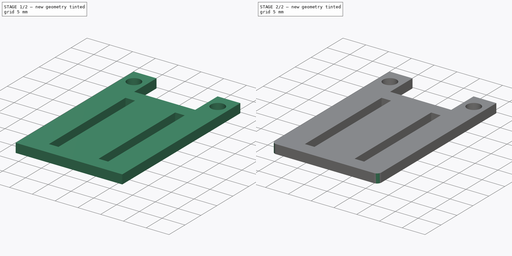
[diagram: build sequence overview — one tinted view per stage of 2, left to right]
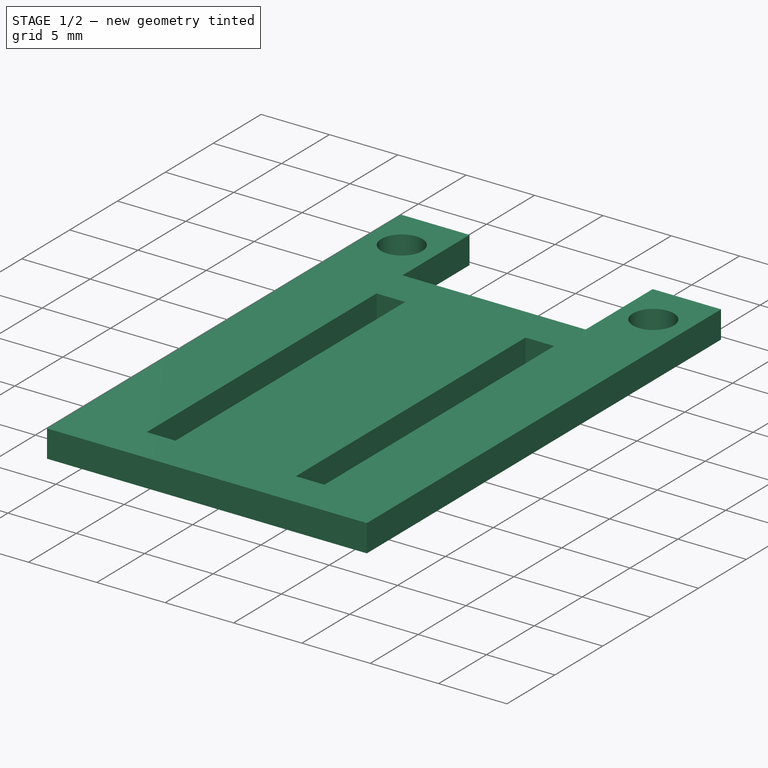
[diagram: stage 1 of 2 — iso view after this stage's code; geometry added in this stage tinted green]
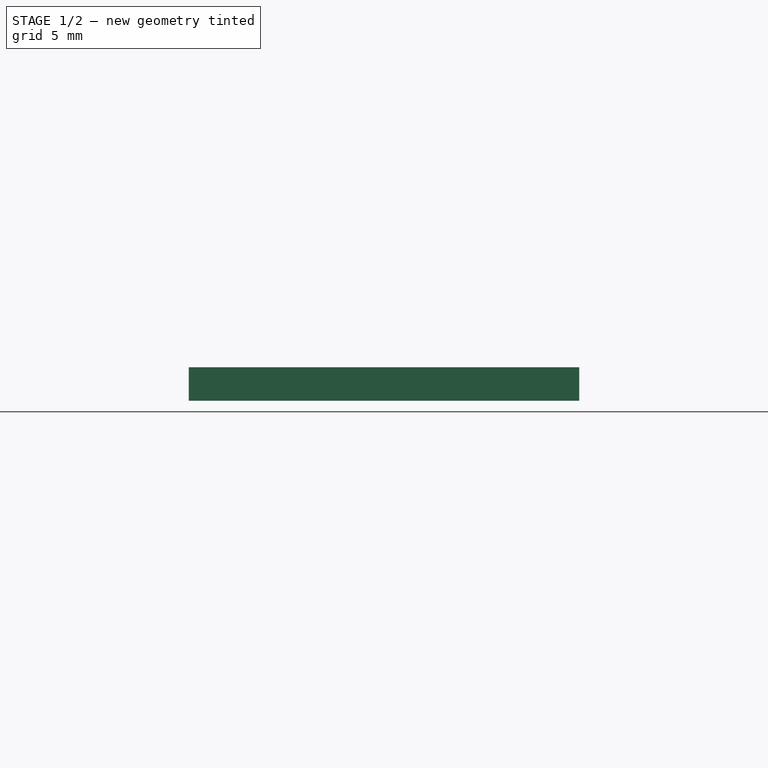
[diagram: stage 1 of 2 — front view after this stage's code; geometry added in this stage tinted green]
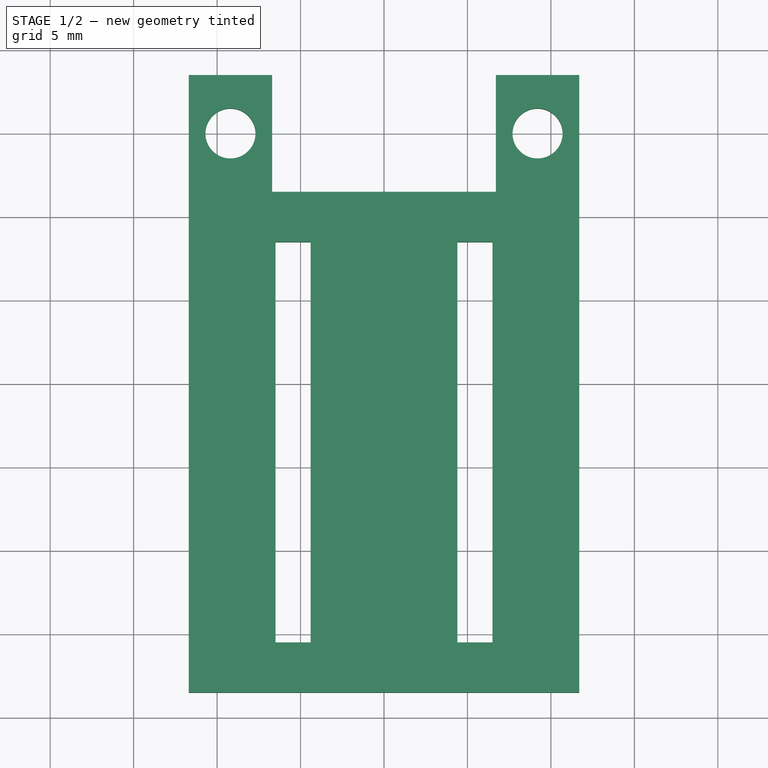
[diagram: stage 1 of 2 — top view after this stage's code; geometry added in this stage tinted green]
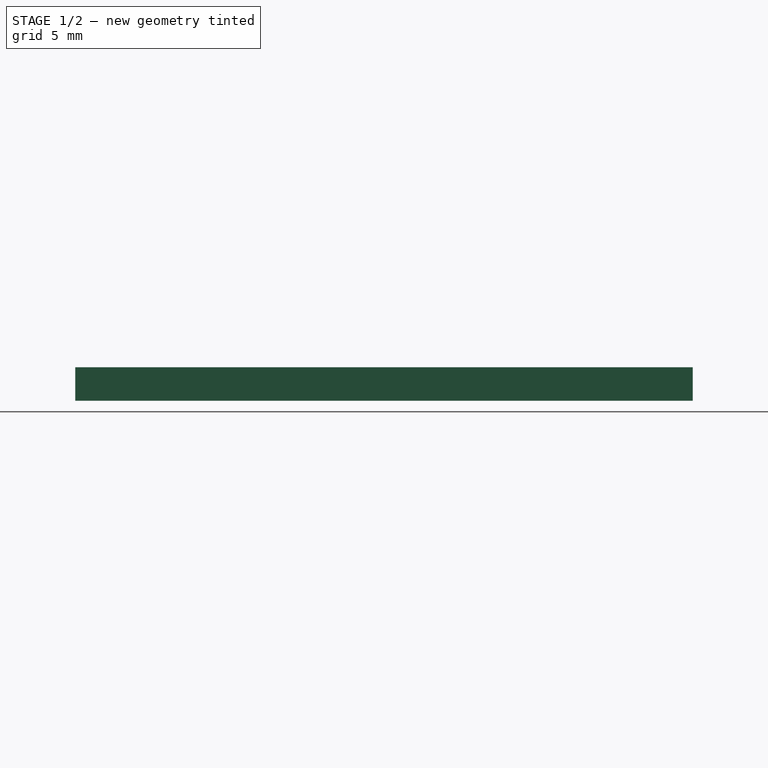
[diagram: stage 1 of 2 — right view after this stage's code; geometry added in this stage tinted green]
FCSTD DOCUMENT  (FreeCAD 0.19R24291 (Git))
Label: holder_optostop
License: All rights reserved
LicenseURL: http://en.wikipedia.org/wiki/All_rights_reserved
objects: Sketcher::SketchObject×1, PartDesign::Pad×1, PartDesign::Fillet×1, PartDesign::Body×1
note: 6 computed .brp shape members not serialized (recipe doc carries the construction recipe); baked Part::Feature solids carry a one-line shape summary decoded from their .brp

FEATURE [Sketcher::SketchObject] Sketch
  FullyConstrained = false
  MapMode = 5
  Support = -> [XY_Plane]
  sketch-geometry (28):
    g0: Circle CenterX=-9.2 CenterY=0 CenterZ=0 NormalX=0 NormalY=0 NormalZ=1 AngleXU=0 Radius=1.5
    g1: Circle CenterX=9.2 CenterY=0 CenterZ=0 NormalX=0 NormalY=0 NormalZ=1 AngleXU=0 Radius=1.5
    g2: LineSegment StartX=-6.5 StartY=-6.5 StartZ=0 EndX=-4.4 EndY=-6.5 EndZ=0
    g3: LineSegment StartX=-4.4 StartY=-6.5 StartZ=0 EndX=-4.4 EndY=-30.5 EndZ=0
    g4: LineSegment StartX=-4.4 StartY=-30.5 StartZ=0 EndX=-6.5 EndY=-30.5 EndZ=0
    g5: LineSegment StartX=-6.5 StartY=-30.5 StartZ=0 EndX=-6.5 EndY=-6.5 EndZ=0
    g6: LineSegment StartX=4.4 StartY=-6.5 StartZ=0 EndX=6.5 EndY=-6.5 EndZ=0
    g7: LineSegment StartX=6.5 StartY=-6.5 StartZ=0 EndX=6.5 EndY=-30.5 EndZ=0
    g8: LineSegment StartX=6.5 StartY=-30.5 StartZ=0 EndX=4.4 EndY=-30.5 EndZ=0
    g9: LineSegment StartX=4.4 StartY=-30.5 StartZ=0 EndX=4.4 EndY=-6.5 EndZ=0
    g10: LineSegment StartX=-11.7 StartY=3.5 StartZ=0 EndX=-6.7 EndY=3.5 EndZ=0
    g11: LineSegment StartX=-6.7 StartY=3.5 StartZ=0 EndX=-6.7 EndY=-3.5 EndZ=0
    g12: LineSegment StartX=-6.7 StartY=-3.5 StartZ=0 EndX=-11.7 EndY=-3.5 EndZ=0
    g13: LineSegment StartX=-11.7 StartY=-3.5 StartZ=0 EndX=-11.7 EndY=3.5 EndZ=0
    g14: LineSegment StartX=-11.7 StartY=-3.5 StartZ=0 EndX=-6.7 EndY=3.5 EndZ=0
    g15: LineSegment StartX=-6.7 StartY=-3.5 StartZ=0 EndX=-11.7 EndY=3.5 EndZ=0
    g16: GeomPoint X=-9.2 Y=0 Z=0
    g17: LineSegment StartX=6.7 StartY=3.5 StartZ=0 EndX=11.7 EndY=3.5 EndZ=0
    g18: LineSegment StartX=11.7 StartY=3.5 StartZ=0 EndX=11.7 EndY=-3.5 EndZ=0
    g19: LineSegment StartX=11.7 StartY=-3.5 StartZ=0 EndX=6.7 EndY=-3.5 EndZ=0
    g20: LineSegment StartX=6.7 StartY=-3.5 StartZ=0 EndX=6.7 EndY=3.5 EndZ=0
    g21: LineSegment StartX=6.7 StartY=-3.5 StartZ=0 EndX=11.7 EndY=3.5 EndZ=0
    g22: LineSegment StartX=11.7 StartY=-3.5 StartZ=0 EndX=6.7 EndY=3.5 EndZ=0
    g23: GeomPoint X=9.2 Y=0 Z=0
    g24: LineSegment StartX=-6.7 StartY=-3.5 StartZ=0 EndX=6.7 EndY=-3.5 EndZ=0
    g25: LineSegment StartX=-11.7 StartY=-3.5 StartZ=0 EndX=-11.7 EndY=-33.5 EndZ=0
    g26: LineSegment StartX=-11.7 StartY=-33.5 StartZ=0 EndX=11.7 EndY=-33.5 EndZ=0
    g27: LineSegment StartX=11.7 StartY=-33.5 StartZ=0 EndX=11.7 EndY=-3.5 EndZ=0
  constraints (72):
    c: PointOnObject(g0,g-1)
    c: Equal(g1,g0)
    c: DistanceX(g0,g1) = 18.4
    c: Diameter(g1) = 3
    c: Coincident(g2,g3)
    c: Coincident(g3,g4)
    c: Coincident(g4,g5)
    c: Coincident(g5,g2)
    c: Horizontal(g2)
    c: Horizontal(g4)
    c: Vertical(g3)
    c: Vertical(g5)
    c: Coincident(g6,g7)
    c: Coincident(g7,g8)
    c: Coincident(g8,g9)
    c: Coincident(g9,g6)
    c: Horizontal(g6)
    c: Horizontal(g8)
    c: Vertical(g7)
    c: Vertical(g9)
    c: Equal(g5,g9)
    c: Equal(g6,g2)
    c: Symmetric(g0,g1,g-1)
    c: Symmetric(g6,g2,g-2)
    c: DistanceX(g4,g4) = 2.1
    c: DistanceX(g2,g6) = 13
    c: Coincident(g10,g11)
    c: Coincident(g11,g12)
    c: Coincident(g12,g13)
    c: Coincident(g13,g10)
    c: Horizontal(g10)
    c: Horizontal(g12)
    c: Vertical(g11)
    c: Vertical(g13)
    c: Coincident(g14,g12)
    c: Coincident(g14,g10)
    c: Coincident(g15,g11)
    c: Coincident(g15,g10)
    c: PointOnObject(g16,g14)
    c: PointOnObject(g16,g15)
    c: Coincident(g17,g18)
    c: Coincident(g18,g19)
    c: Coincident(g19,g20)
    c: Coincident(g20,g17)
    c: Horizontal(g17)
    c: Horizontal(g19)
    c: Vertical(g18)
    c: Vertical(g20)
    c: Coincident(g21,g19)
    c: Coincident(g21,g17)
    c: Coincident(g22,g18)
    c: Coincident(g22,g17)
    c: PointOnObject(g23,g21)
    c: PointOnObject(g23,g22)
    c: Coincident(g16,g0)
    c: Coincident(g23,g1)
    c: Equal(g17,g10)
    c: Coincident(g24,g11)
    c: Coincident(g24,g20)
    c: Horizontal(g24)
    c: DistanceX(g10,g10) = 5
    c: DistanceY(g13,g13) = 7
    c: Coincident(g13,g25)
    c: Vertical(g25)
    c: Coincident(g25,g26)
    c: Horizontal(g26)
    c: Coincident(g26,g27)
    c: Coincident(g27,g18)
    c: Vertical(g27)
    c: DistanceY(g26,g7) = 3
    c: DistanceY(g6,g18) = 3
    c: DistanceY(g25,g13) = 30
FEATURE [PartDesign::Pad] Pad
  Direction = (1,1,1)
  Length = 2
  Length2 = 100
  Profile = -> Sketch
  Type = 0
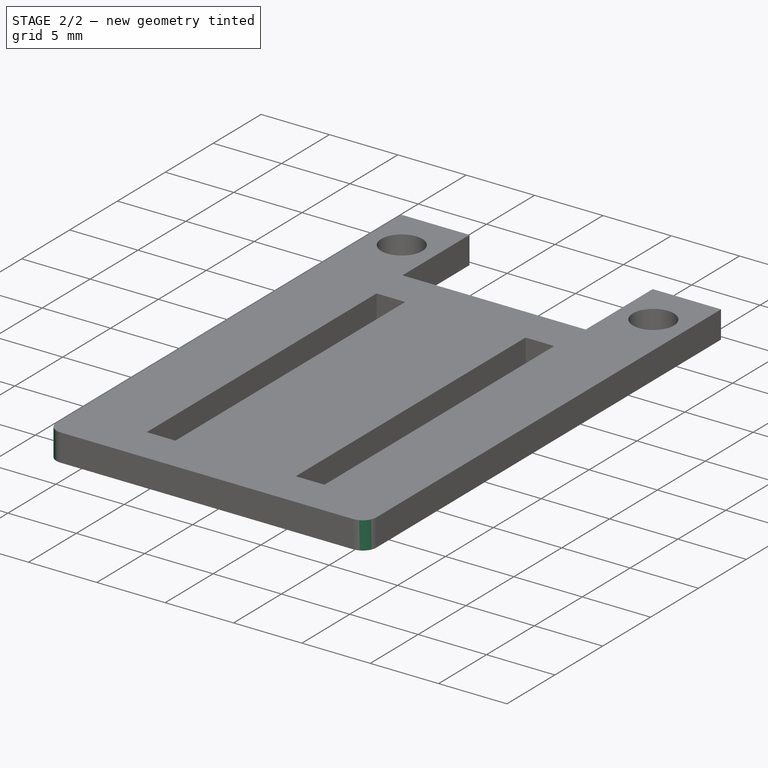
[diagram: stage 2 of 2 — iso view after this stage's code; geometry added in this stage tinted green]
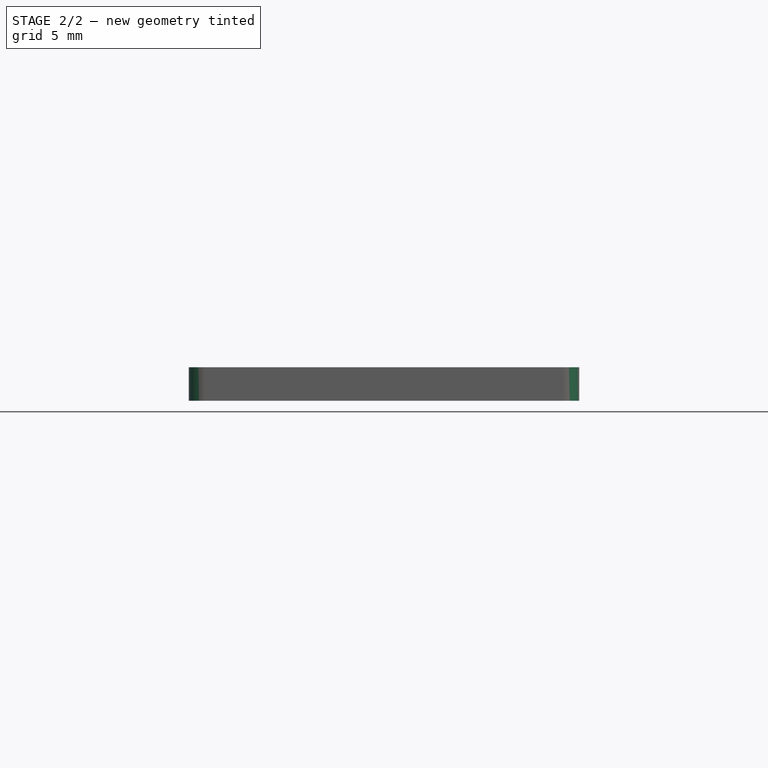
[diagram: stage 2 of 2 — front view after this stage's code; geometry added in this stage tinted green]
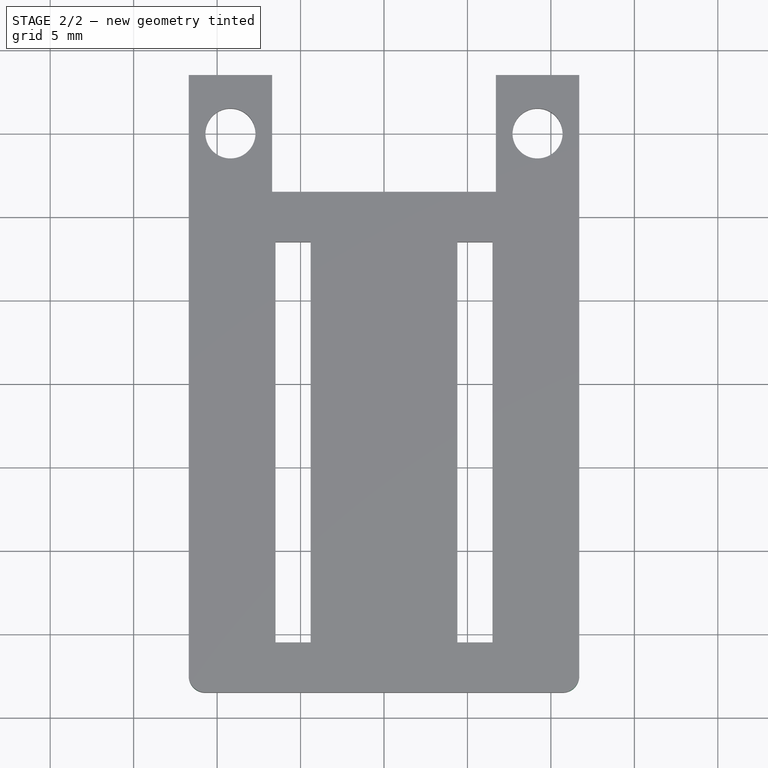
[diagram: stage 2 of 2 — top view after this stage's code; geometry added in this stage tinted green]
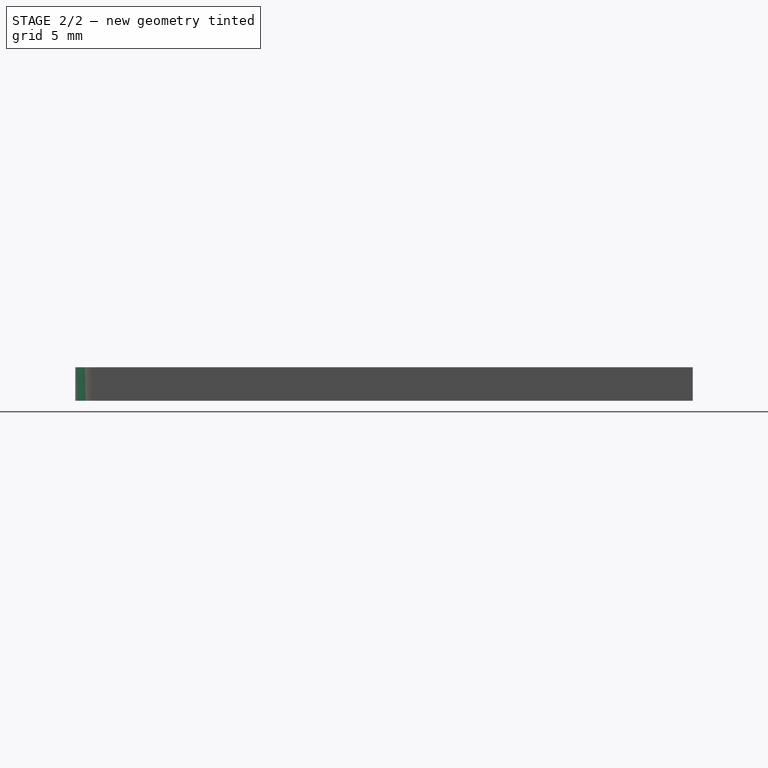
[diagram: stage 2 of 2 — right view after this stage's code; geometry added in this stage tinted green]
FEATURE [PartDesign::Fillet] Fillet
  Base = -> Pad [Edge26,Edge23]
  BaseFeature = -> Pad
  Radius = 1
  SupportTransform = false
FEATURE [PartDesign::Body] Body  label="holder_optostop"
  Group = -> [Sketch,Pad,Fillet]
  Origin = -> Origin
  Tip = -> Fillet
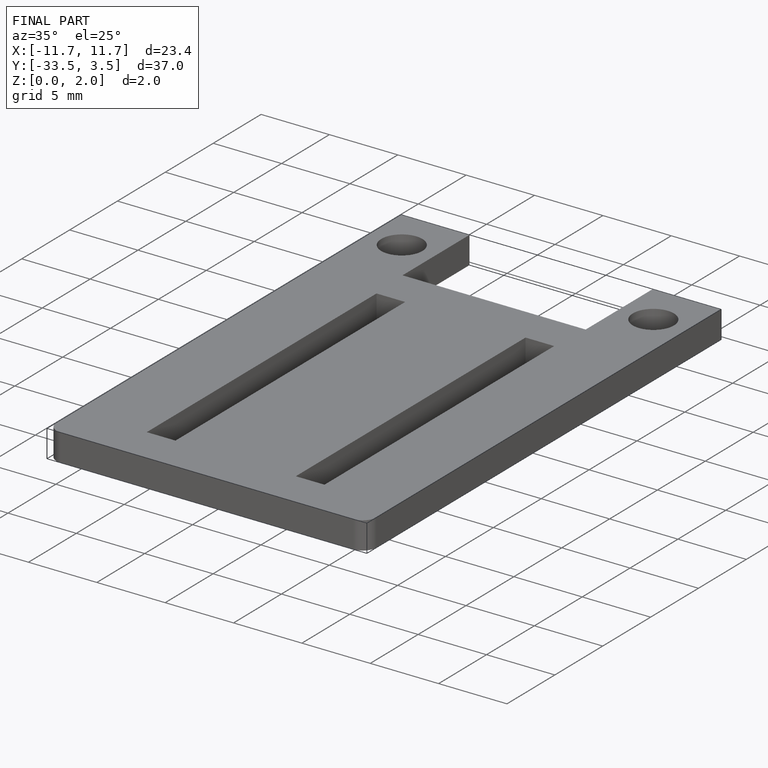
[diagram: finished part — iso view with bounding-box wireframe]
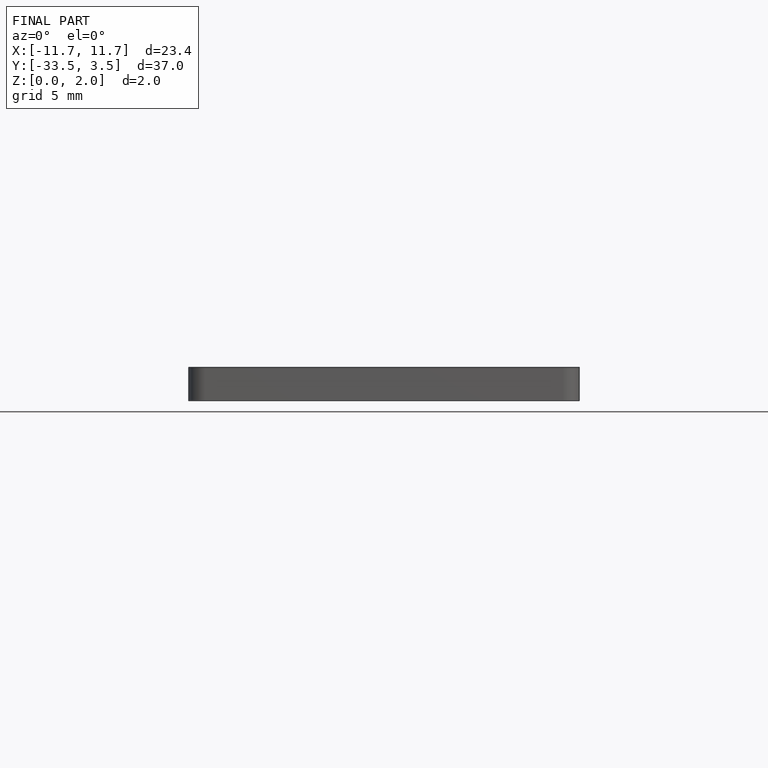
[diagram: finished part — front view with bounding-box wireframe]
